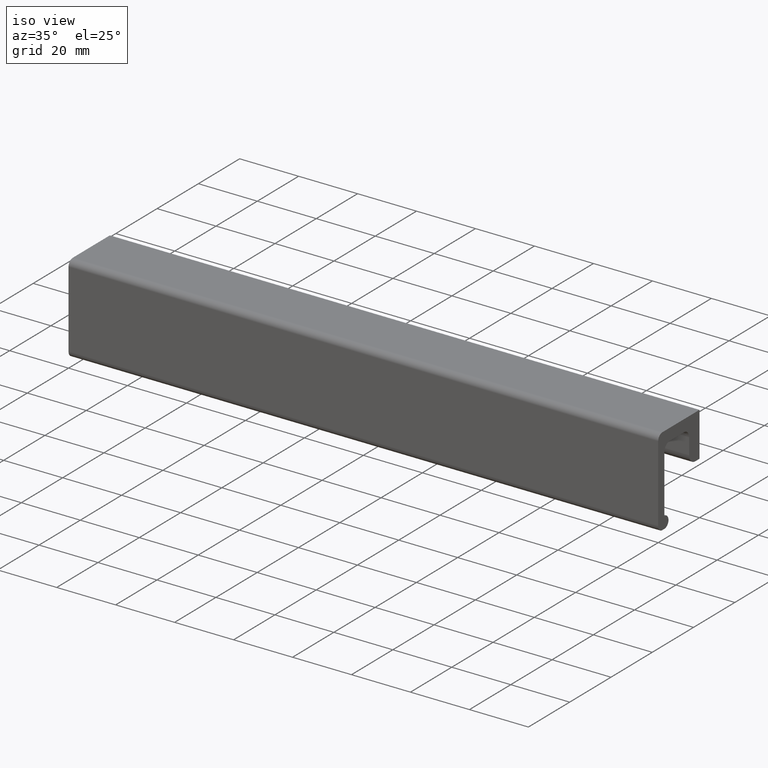
[diagram: clean part render]
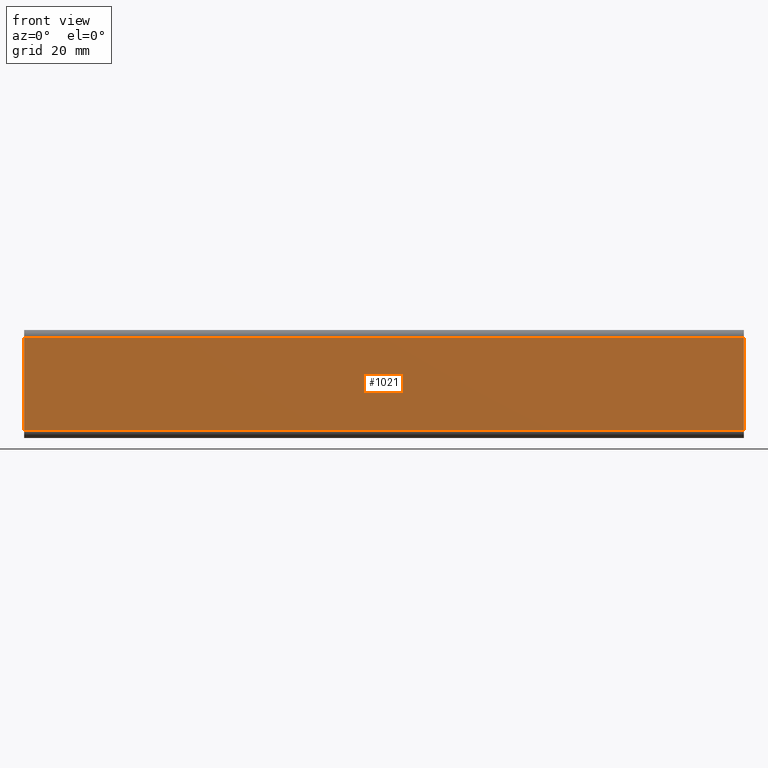
[diagram: tour spotlight — one face highlighted and labeled with its STEP entity id]
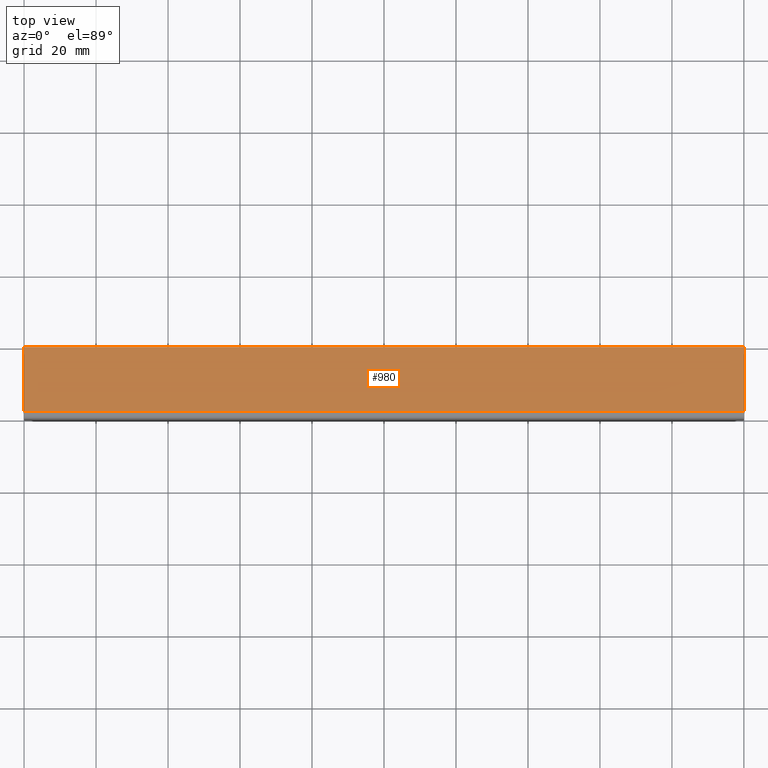
[diagram: tour spotlight — one face highlighted and labeled with its STEP entity id]
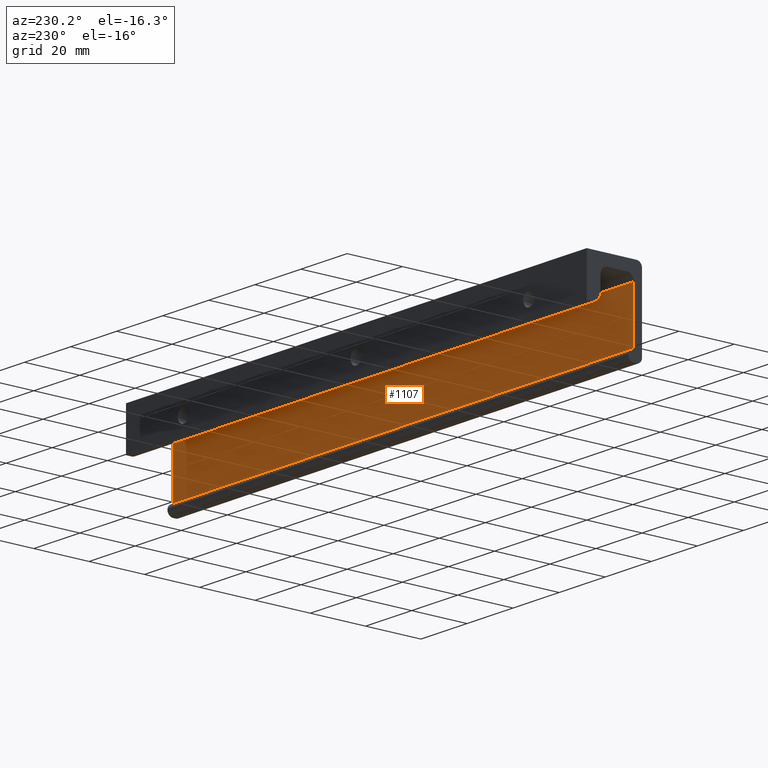
[diagram: tour spotlight — one face highlighted and labeled with its STEP entity id]
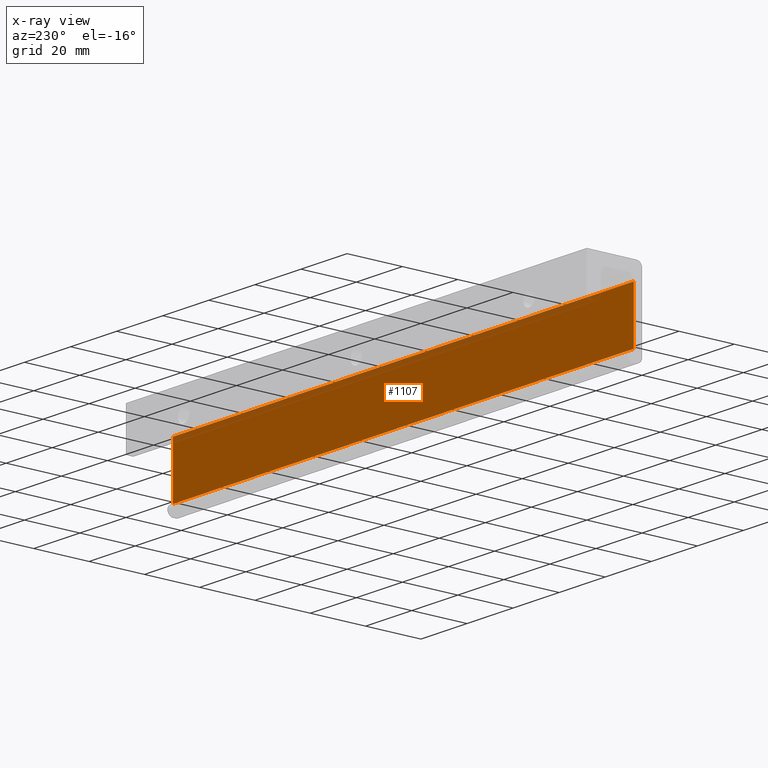
[diagram: x-ray of the same camera — body ghosted, this tour face saturated]
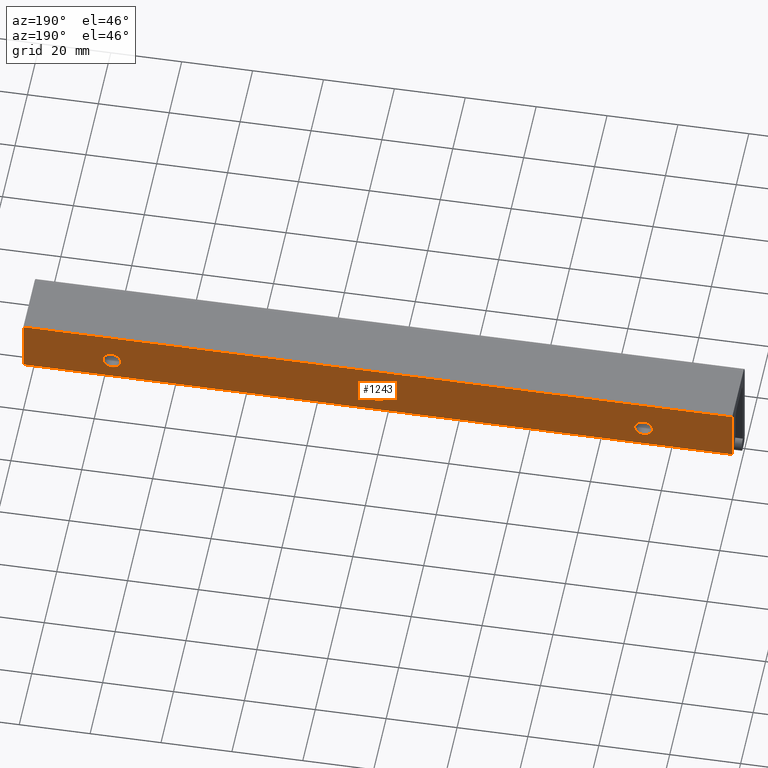
[diagram: tour spotlight — one face highlighted and labeled with its STEP entity id]
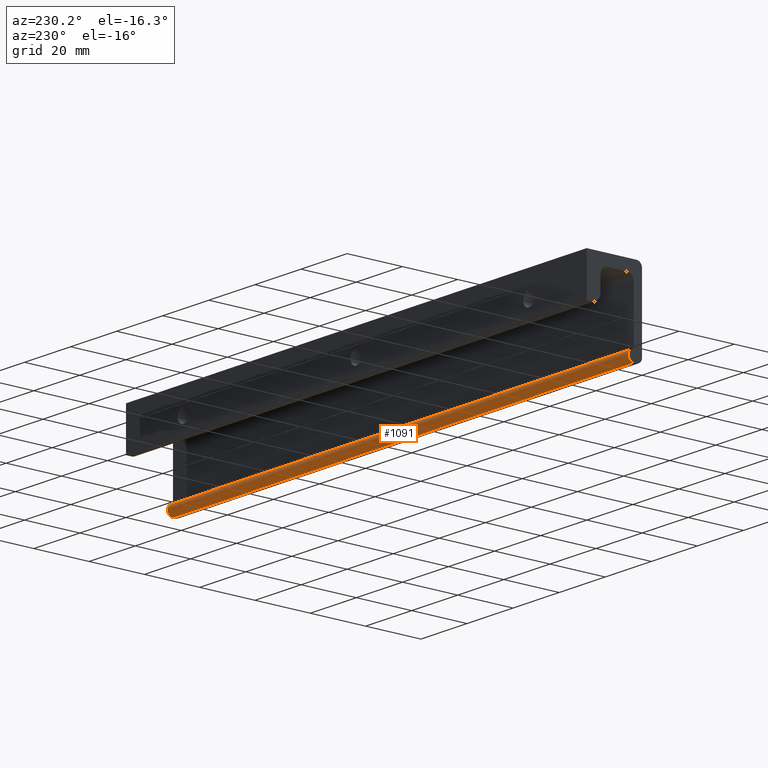
[diagram: tour spotlight — one face highlighted and labeled with its STEP entity id]
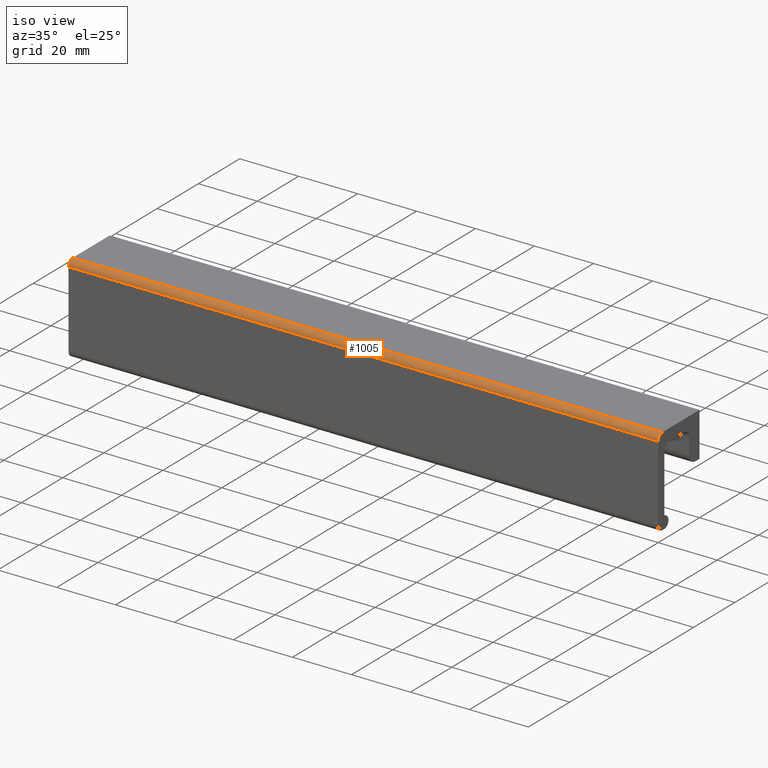
[diagram: tour spotlight — one face highlighted and labeled with its STEP entity id]
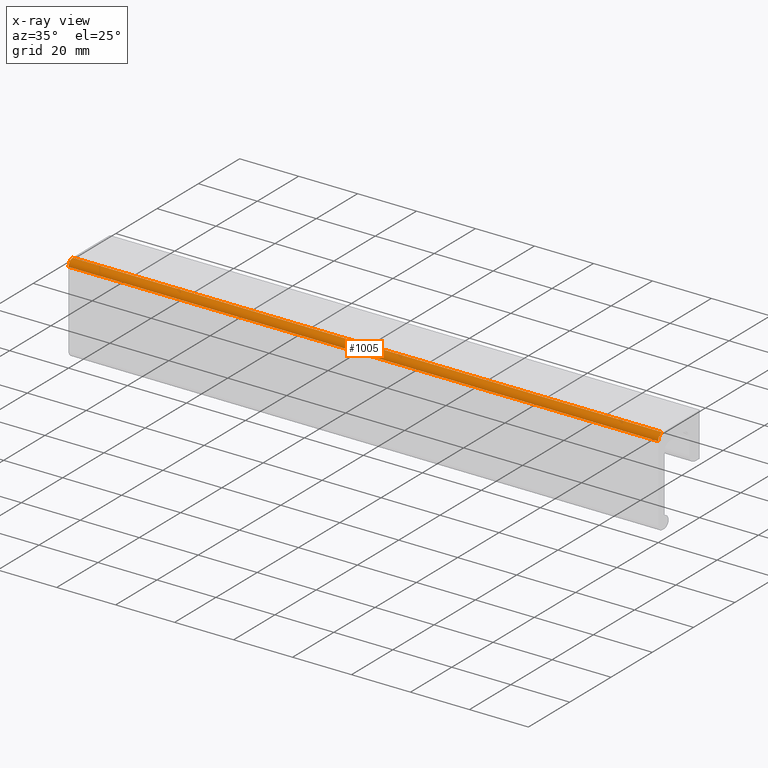
[diagram: x-ray of the same camera — body ghosted, this tour face saturated]
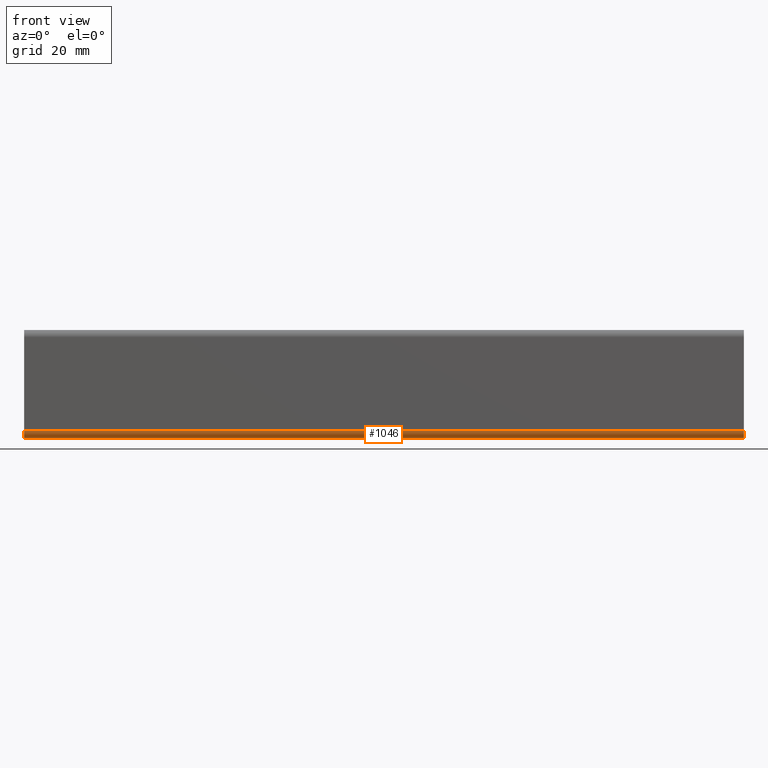
[diagram: tour spotlight — one face highlighted and labeled with its STEP entity id]
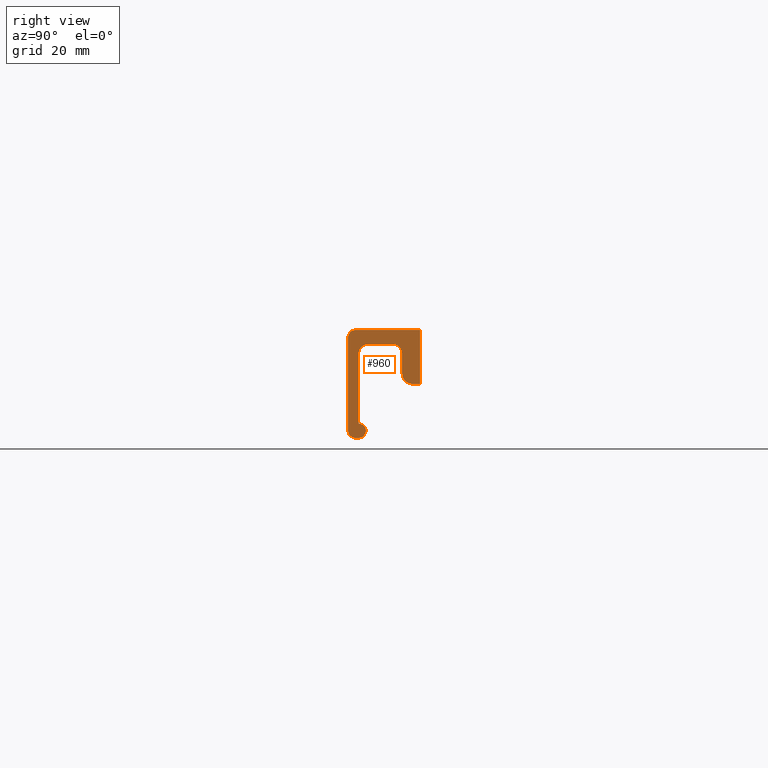
[diagram: tour spotlight — one face highlighted and labeled with its STEP entity id]
A machine part: a face-by-face anatomy tour. The part has 22 B-rep faces; the first image is the clean iso view, then the 8 largest visible faces are spotlighted one at a time (largest first), each with its STEP entity span.

Face 1 — front view, entity #1021. In plain terms, the highlighted face is a freeform B-spline surface patch.
Definition (entity closure, byte-faithful):
#768=CARTESIAN_POINT('',(0.0,-20.0,-28.0));
#769=VERTEX_POINT('',#768);
#783=CARTESIAN_POINT('',(0.0,-20.0,-2.0));
#784=VERTEX_POINT('',#783);
#785=CARTESIAN_POINT('',(0.0,-20.0,-28.0));
#786=CARTESIAN_POINT('',(0.0,-20.0,-2.0));
#787=QUASI_UNIFORM_CURVE('',1,(#785,#786),.UNSPECIFIED.,.F.,.U.);
#788=EDGE_CURVE('',#769,#784,#787,.T.);
#834=CARTESIAN_POINT('',(200.0,-20.0,-2.0));
#835=VERTEX_POINT('',#834);
#849=CARTESIAN_POINT('',(200.0,-20.0,-28.0));
#850=VERTEX_POINT('',#849);
#851=CARTESIAN_POINT('',(200.0,-20.0,-28.0));
#852=CARTESIAN_POINT('',(200.0,-20.0,-2.0));
#853=QUASI_UNIFORM_CURVE('',1,(#851,#852),.UNSPECIFIED.,.F.,.U.);
#854=EDGE_CURVE('',#850,#835,#853,.T.);
#996=CARTESIAN_POINT('',(200.0,-20.0,-2.0));
#997=CARTESIAN_POINT('',(0.0,-20.0,-2.0));
#998=QUASI_UNIFORM_CURVE('',1,(#996,#997),.UNSPECIFIED.,.F.,.U.);
#999=EDGE_CURVE('',#835,#784,#998,.T.);
#1006=CARTESIAN_POINT('',(-9.989999612361194,-20.0,-0.701300050393045));
#1007=CARTESIAN_POINT('',(-9.989999612361194,-20.0,-29.298700646981299));
#1008=CARTESIAN_POINT('',(209.990004976779200,-20.0,-0.701300050393045));
#1009=CARTESIAN_POINT('',(209.990004976779200,-20.0,-29.298700646981299));
#1010=B_SPLINE_SURFACE_WITH_KNOTS('',1,1,((#1006,#1008),(#1007,#1009)),.UNSPECIFIED.,.F.,.F.,.U.,(2,2),(2,2),(0.0,28.597400596588258),(0.0,219.980004589140410),.UNSPECIFIED.);
#1011=ORIENTED_EDGE('',*,*,#788,.F.);
#1012=CARTESIAN_POINT('',(200.0,-20.0,-28.0));
#1013=CARTESIAN_POINT('',(0.0,-20.0,-28.0));
#1014=QUASI_UNIFORM_CURVE('',1,(#1012,#1013),.UNSPECIFIED.,.F.,.U.);
#1015=EDGE_CURVE('',#850,#769,#1014,.T.);
#1016=ORIENTED_EDGE('',*,*,#1015,.F.);
#1017=ORIENTED_EDGE('',*,*,#854,.T.);
#1018=ORIENTED_EDGE('',*,*,#999,.T.);
#1019=EDGE_LOOP('',(#1011,#1016,#1017,#1018));
#1020=FACE_OUTER_BOUND('',#1019,.T.);
#1021=ADVANCED_FACE('',(#1020),#1010,.T.);

Face 2 — top view, entity #980. In plain terms, the highlighted face is a freeform B-spline surface patch.
Definition (entity closure, byte-faithful):
#670=CARTESIAN_POINT('',(0.0,0.0,0.0));
#671=VERTEX_POINT('',#670);
#790=CARTESIAN_POINT('',(0.0,-18.0,2.220446E-016));
#791=VERTEX_POINT('',#790);
#805=CARTESIAN_POINT('',(0.0,-18.0,2.220446E-016));
#806=CARTESIAN_POINT('',(0.0,0.0,0.0));
#807=QUASI_UNIFORM_CURVE('',1,(#805,#806),.UNSPECIFIED.,.F.,.U.);
#808=EDGE_CURVE('',#791,#671,#807,.T.);
#818=CARTESIAN_POINT('',(200.0,0.0,0.0));
#819=VERTEX_POINT('',#818);
#827=CARTESIAN_POINT('',(200.0,-18.0,2.220446E-016));
#828=VERTEX_POINT('',#827);
#829=CARTESIAN_POINT('',(200.0,-18.0,2.220446E-016));
#830=CARTESIAN_POINT('',(200.0,0.0,0.0));
#831=QUASI_UNIFORM_CURVE('',1,(#829,#830),.UNSPECIFIED.,.F.,.U.);
#832=EDGE_CURVE('',#828,#819,#831,.T.);
#961=CARTESIAN_POINT('',(-9.989999612361194,-18.899099965112509,0.0));
#962=CARTESIAN_POINT('',(209.990004976779200,-18.899099965112509,0.0));
#963=CARTESIAN_POINT('',(-9.989999612361194,0.899100447910129,0.0));
#964=CARTESIAN_POINT('',(209.990004976779200,0.899100447910129,0.0));
#965=B_SPLINE_SURFACE_WITH_KNOTS('',1,1,((#961,#963),(#962,#964)),.UNSPECIFIED.,.F.,.F.,.U.,(2,2),(2,2),(0.0,219.980004589140410),(0.0,19.798200413022631),.UNSPECIFIED.);
#966=ORIENTED_EDGE('',*,*,#808,.F.);
#967=CARTESIAN_POINT('',(200.0,-18.0,2.220446E-016));
#968=CARTESIAN_POINT('',(0.0,-18.0,2.220446E-016));
#969=QUASI_UNIFORM_CURVE('',1,(#967,#968),.UNSPECIFIED.,.F.,.U.);
#970=EDGE_CURVE('',#828,#791,#969,.T.);
#971=ORIENTED_EDGE('',*,*,#970,.F.);
#972=ORIENTED_EDGE('',*,*,#832,.T.);
#973=CARTESIAN_POINT('',(200.0,0.0,0.0));
#974=CARTESIAN_POINT('',(0.0,0.0,0.0));
#975=QUASI_UNIFORM_CURVE('',1,(#973,#974),.UNSPECIFIED.,.F.,.U.);
#976=EDGE_CURVE('',#819,#671,#975,.T.);
#977=ORIENTED_EDGE('',*,*,#976,.T.);
#978=EDGE_LOOP('',(#966,#971,#972,#977));
#979=FACE_OUTER_BOUND('',#978,.T.);
#980=ADVANCED_FACE('',(#979),#965,.T.);

Face 3 — auxiliary view, entity #1107. An x-ray twin of the same camera follows (body ghosted, this face saturated) — the face is partly hidden behind the body. In plain terms, the highlighted face is a freeform B-spline surface patch.
Definition (entity closure, byte-faithful):
#722=CARTESIAN_POINT('',(0.0,-17.0,-6.500000000000000));
#723=VERTEX_POINT('',#722);
#737=CARTESIAN_POINT('',(0.0,-17.000000000000249,-26.0));
#738=VERTEX_POINT('',#737);
#739=CARTESIAN_POINT('',(0.0,-17.0,-6.500000000000000));
#740=CARTESIAN_POINT('',(0.0,-17.000000000000249,-26.0));
#741=QUASI_UNIFORM_CURVE('',1,(#739,#740),.UNSPECIFIED.,.F.,.U.);
#742=EDGE_CURVE('',#723,#738,#741,.T.);
#878=CARTESIAN_POINT('',(200.0,-17.000000000000249,-26.0));
#879=VERTEX_POINT('',#878);
#895=CARTESIAN_POINT('',(200.0,-17.0,-6.500000000000000));
#896=VERTEX_POINT('',#895);
#897=CARTESIAN_POINT('',(200.0,-17.0,-6.500000000000000));
#898=CARTESIAN_POINT('',(200.0,-17.000000000000249,-26.0));
#899=QUASI_UNIFORM_CURVE('',1,(#897,#898),.UNSPECIFIED.,.F.,.U.);
#900=EDGE_CURVE('',#896,#879,#899,.T.);
#1082=CARTESIAN_POINT('',(200.0,-17.000000000000249,-26.0));
#1083=CARTESIAN_POINT('',(0.0,-17.000000000000249,-26.0));
#1084=QUASI_UNIFORM_CURVE('',1,(#1082,#1083),.UNSPECIFIED.,.F.,.U.);
#1085=EDGE_CURVE('',#879,#738,#1084,.T.);
#1092=CARTESIAN_POINT('',(-9.989999612361194,-17.000000000000249,-26.974024962205220));
#1093=CARTESIAN_POINT('',(-9.989999612361194,-17.000000000000249,-5.525974514764027));
#1094=CARTESIAN_POINT('',(209.990004976779200,-17.000000000000249,-26.974024962205220));
#1095=CARTESIAN_POINT('',(209.990004976779200,-17.000000000000249,-5.525974514764027));
#1096=B_SPLINE_SURFACE_WITH_KNOTS('',1,1,((#1092,#1094),(#1093,#1095)),.UNSPECIFIED.,.F.,.F.,.U.,(2,2),(2,2),(0.0,21.448050447441190),(0.0,219.980004589140410),.UNSPECIFIED.);
#1097=ORIENTED_EDGE('',*,*,#742,.F.);
#1098=CARTESIAN_POINT('',(200.0,-17.0,-6.500000000000000));
#1099=CARTESIAN_POINT('',(0.0,-17.0,-6.500000000000000));
#1100=QUASI_UNIFORM_CURVE('',1,(#1098,#1099),.UNSPECIFIED.,.F.,.U.);
#1101=EDGE_CURVE('',#896,#723,#1100,.T.);
#1102=ORIENTED_EDGE('',*,*,#1101,.F.);
#1103=ORIENTED_EDGE('',*,*,#900,.T.);
#1104=ORIENTED_EDGE('',*,*,#1085,.T.);
#1105=EDGE_LOOP('',(#1097,#1102,#1103,#1104));
#1106=FACE_OUTER_BOUND('',#1105,.T.);
#1107=ADVANCED_FACE('',(#1106),#1096,.T.);

Face 4 — auxiliary view, entity #1243. In plain terms, the highlighted face is a freeform B-spline surface patch.
Definition (entity closure, byte-faithful):
#79=CARTESIAN_POINT('',(177.480665534347110,5.801229E-017,-9.310320006932358));
#80=VERTEX_POINT('',#79);
#86=CARTESIAN_POINT('',(175.0,0.0,-11.500000000000000));
#87=VERTEX_POINT('',#86);
#88=CARTESIAN_POINT('',(175.0,0.0,-11.500000000000000));
#89=CARTESIAN_POINT('',(177.206746497268740,0.0,-11.500000000000000));
#90=CARTESIAN_POINT('',(177.480665534347140,5.801229E-017,-9.310320006932358));
#98=(BOUNDED_CURVE()B_SPLINE_CURVE(2,(#88,#89,#90),.UNSPECIFIED.,.F.,.U.)B_SPLINE_CURVE_WITH_KNOTS((3,3),(0.500000000000000,0.728526070793695),.UNSPECIFIED.)CURVE()GEOMETRIC_REPRESENTATION_ITEM()RATIONAL_B_SPLINE_CURVE((1.0,0.732265054169775,0.954005429817503))REPRESENTATION_ITEM(''));
#99=EDGE_CURVE('',#87,#80,#98,.T.);
#101=CARTESIAN_POINT('',(172.500095192353200,8.326673E-017,-8.978183659695775));
#102=VERTEX_POINT('',#101);
#103=CARTESIAN_POINT('',(172.500095192353230,8.326673E-017,-8.978183659695775));
#104=CARTESIAN_POINT('',(172.500000000000060,0.0,-8.989091621389868));
#105=CARTESIAN_POINT('',(172.500000000000000,0.0,-9.0));
#106=CARTESIAN_POINT('',(172.500000000000060,0.0,-11.500000000000000));
#107=CARTESIAN_POINT('',(175.0,0.0,-11.500000000000000));
#115=(BOUNDED_CURVE()B_SPLINE_CURVE(2,(#103,#104,#105,#106,#107),.UNSPECIFIED.,.F.,.U.)B_SPLINE_CURVE_WITH_KNOTS((3,2,3),(0.248460105445419,0.250000000000000,0.500000000000000),.UNSPECIFIED.)CURVE()GEOMETRIC_REPRESENTATION_ITEM()RATIONAL_B_SPLINE_CURVE((0.996414027592205,0.998195901309102,1.0,0.707106781186548,1.0))REPRESENTATION_ITEM(''));
#116=EDGE_CURVE('',#102,#87,#115,.T.);
#196=CARTESIAN_POINT('',(175.0,0.0,-6.499999999999999));
#197=VERTEX_POINT('',#196);
#198=CARTESIAN_POINT('',(175.0,0.0,-6.499999999999999));
#199=CARTESIAN_POINT('',(172.521721976602270,0.0,-6.499999999999998));
#200=CARTESIAN_POINT('',(172.500095192353230,8.326673E-017,-8.978183659695775));
#208=(BOUNDED_CURVE()B_SPLINE_CURVE(2,(#198,#199,#200),.UNSPECIFIED.,.F.,.U.)B_SPLINE_CURVE_WITH_KNOTS((3,3),(0.0,0.248460105445419),.UNSPECIFIED.)CURVE()GEOMETRIC_REPRESENTATION_ITEM()RATIONAL_B_SPLINE_CURVE((1.0,0.708910879877445,0.996414027592205))REPRESENTATION_ITEM(''));
#209=EDGE_CURVE('',#197,#102,#208,.T.);
#211=CARTESIAN_POINT('',(177.480665534347110,5.801229E-017,-9.310320006932358));
#212=CARTESIAN_POINT('',(177.499999999999970,0.0,-9.155762320586804));
#213=CARTESIAN_POINT('',(177.500000000000000,0.0,-9.0));
#214=CARTESIAN_POINT('',(177.500000000000030,0.0,-6.499999999999999));
#215=CARTESIAN_POINT('',(175.0,0.0,-6.499999999999999));
#223=(BOUNDED_CURVE()B_SPLINE_CURVE(2,(#211,#212,#213,#214,#215),.UNSPECIFIED.,.F.,.U.)B_SPLINE_CURVE_WITH_KNOTS((3,2,3),(0.728526070793695,0.750000000000000,1.0),.UNSPECIFIED.)CURVE()GEOMETRIC_REPRESENTATION_ITEM()RATIONAL_B_SPLINE_CURVE((0.954005429817503,0.974841727016773,1.0,0.707106781186548,1.0))REPRESENTATION_ITEM(''));
#224=EDGE_CURVE('',#80,#197,#223,.T.);
#265=CARTESIAN_POINT('',(102.480665534347100,5.801229E-017,-9.310320006932358));
#266=VERTEX_POINT('',#265);
#272=CARTESIAN_POINT('',(100.0,0.0,-11.500000000000000));
#273=VERTEX_POINT('',#272);
#274=CARTESIAN_POINT('',(100.0,0.0,-11.500000000000000));
#275=CARTESIAN_POINT('',(102.206746497268670,0.0,-11.500000000000000));
#276=CARTESIAN_POINT('',(102.480665534347080,5.801229E-017,-9.310320006932358));
#284=(BOUNDED_CURVE()B_SPLINE_CURVE(2,(#274,#275,#276),.UNSPECIFIED.,.F.,.U.)B_SPLINE_CURVE_WITH_KNOTS((3,3),(0.500000000000000,0.728526070793695),.UNSPECIFIED.)CURVE()GEOMETRIC_REPRESENTATION_ITEM()RATIONAL_B_SPLINE_CURVE((1.0,0.732265054169775,0.954005429817503))REPRESENTATION_ITEM(''));
#285=EDGE_CURVE('',#273,#266,#284,.T.);
#287=CARTESIAN_POINT('',(97.500095192353172,8.326673E-017,-8.978183659695777));
#288=VERTEX_POINT('',#287);
#289=CARTESIAN_POINT('',(97.500095192353172,8.326673E-017,-8.978183659695777));
#290=CARTESIAN_POINT('',(97.500000000000000,0.0,-8.989091621389868));
#291=CARTESIAN_POINT('',(97.500000000000000,0.0,-9.0));
#292=CARTESIAN_POINT('',(97.500000000000000,0.0,-11.500000000000000));
#293=CARTESIAN_POINT('',(100.0,0.0,-11.500000000000000));
#301=(BOUNDED_CURVE()B_SPLINE_CURVE(2,(#289,#290,#291,#292,#293),.UNSPECIFIED.,.F.,.U.)B_SPLINE_CURVE_WITH_KNOTS((3,2,3),(0.248460105445419,0.250000000000000,0.500000000000000),.UNSPECIFIED.)CURVE()GEOMETRIC_REPRESENTATION_ITEM()RATIONAL_B_SPLINE_CURVE((0.996414027592205,0.998195901309102,1.0,0.707106781186548,1.0))REPRESENTATION_ITEM(''));
#302=EDGE_CURVE('',#288,#273,#301,.T.);
#382=CARTESIAN_POINT('',(100.0,0.0,-6.499999999999999));
#383=VERTEX_POINT('',#382);
#384=CARTESIAN_POINT('',(100.0,0.0,-6.499999999999999));
#385=CARTESIAN_POINT('',(97.521721976602279,0.0,-6.500000000000000));
#386=CARTESIAN_POINT('',(97.500095192353172,8.326673E-017,-8.978183659695777));
#394=(BOUNDED_CURVE()B_SPLINE_CURVE(2,(#384,#385,#386),.UNSPECIFIED.,.F.,.U.)B_SPLINE_CURVE_WITH_KNOTS((3,3),(0.0,0.248460105445419),.UNSPECIFIED.)CURVE()GEOMETRIC_REPRESENTATION_ITEM()RATIONAL_B_SPLINE_CURVE((1.0,0.708910879877445,0.996414027592205))REPRESENTATION_ITEM(''));
#395=EDGE_CURVE('',#383,#288,#394,.T.);
#397=CARTESIAN_POINT('',(102.480665534347080,5.801229E-017,-9.310320006932358));
#398=CARTESIAN_POINT('',(102.500000000000010,0.0,-9.155762320586804));
#399=CARTESIAN_POINT('',(102.500000000000000,0.0,-9.0));
#400=CARTESIAN_POINT('',(102.500000000000010,0.0,-6.499999999999999));
#401=CARTESIAN_POINT('',(100.0,0.0,-6.499999999999999));
#409=(BOUNDED_CURVE()B_SPLINE_CURVE(2,(#397,#398,#399,#400,#401),.UNSPECIFIED.,.F.,.U.)B_SPLINE_CURVE_WITH_KNOTS((3,2,3),(0.728526070793695,0.750000000000000,1.0),.UNSPECIFIED.)CURVE()GEOMETRIC_REPRESENTATION_ITEM()RATIONAL_B_SPLINE_CURVE((0.954005429817503,0.974841727016773,1.0,0.707106781186548,1.0))REPRESENTATION_ITEM(''));
#410=EDGE_CURVE('',#266,#383,#409,.T.);
#451=CARTESIAN_POINT('',(27.480665534347079,5.801229E-017,-9.310320006932356));
#452=VERTEX_POINT('',#451);
#458=CARTESIAN_POINT('',(25.0,0.0,-11.500000000000000));
#459=VERTEX_POINT('',#458);
#460=CARTESIAN_POINT('',(25.0,0.0,-11.500000000000000));
#461=CARTESIAN_POINT('',(27.206746497268643,0.0,-11.500000000000000));
#462=CARTESIAN_POINT('',(27.480665534347086,5.801229E-017,-9.310320006932356));
#470=(BOUNDED_CURVE()B_SPLINE_CURVE(2,(#460,#461,#462),.UNSPECIFIED.,.F.,.U.)B_SPLINE_CURVE_WITH_KNOTS((3,3),(0.500000000000000,0.728526070793695),.UNSPECIFIED.)CURVE()GEOMETRIC_REPRESENTATION_ITEM()RATIONAL_B_SPLINE_CURVE((1.0,0.732265054169775,0.954005429817503))REPRESENTATION_ITEM(''));
#471=EDGE_CURVE('',#459,#452,#470,.T.);
#473=CARTESIAN_POINT('',(22.500095192353172,8.326673E-017,-8.978183659695775));
#474=VERTEX_POINT('',#473);
#475=CARTESIAN_POINT('',(22.500095192353168,8.326673E-017,-8.978183659695775));
#476=CARTESIAN_POINT('',(22.500000000000000,0.0,-8.989091621389868));
#477=CARTESIAN_POINT('',(22.500000000000000,0.0,-9.0));
#478=CARTESIAN_POINT('',(22.500000000000000,0.0,-11.500000000000000));
#479=CARTESIAN_POINT('',(25.0,0.0,-11.500000000000000));
#487=(BOUNDED_CURVE()B_SPLINE_CURVE(2,(#475,#476,#477,#478,#479),.UNSPECIFIED.,.F.,.U.)B_SPLINE_CURVE_WITH_KNOTS((3,2,3),(0.248460105445419,0.250000000000000,0.500000000000000),.UNSPECIFIED.)CURVE()GEOMETRIC_REPRESENTATION_ITEM()RATIONAL_B_SPLINE_CURVE((0.996414027592205,0.998195901309102,1.0,0.707106781186548,1.0))REPRESENTATION_ITEM(''));
#488=EDGE_CURVE('',#474,#459,#487,.T.);
#568=CARTESIAN_POINT('',(25.0,0.0,-6.499999999999999));
#569=VERTEX_POINT('',#568);
#570=CARTESIAN_POINT('',(25.0,0.0,-6.499999999999999));
#571=CARTESIAN_POINT('',(22.521721976602297,0.0,-6.499999999999999));
#572=CARTESIAN_POINT('',(22.500095192353172,8.326673E-017,-8.978183659695775));
#580=(BOUNDED_CURVE()B_SPLINE_CURVE(2,(#570,#571,#572),.UNSPECIFIED.,.F.,.U.)B_SPLINE_CURVE_WITH_KNOTS((3,3),(0.0,0.248460105445419),.UNSPECIFIED.)CURVE()GEOMETRIC_REPRESENTATION_ITEM()RATIONAL_B_SPLINE_CURVE((1.0,0.708910879877445,0.996414027592205))REPRESENTATION_ITEM(''));
#581=EDGE_CURVE('',#569,#474,#580,.T.);
#583=CARTESIAN_POINT('',(27.480665534347086,5.801229E-017,-9.310320006932356));
#584=CARTESIAN_POINT('',(27.499999999999996,0.0,-9.155762320586804));
#585=CARTESIAN_POINT('',(27.500000000000000,0.0,-9.0));
#586=CARTESIAN_POINT('',(27.500000000000004,0.0,-6.499999999999999));
#587=CARTESIAN_POINT('',(25.0,0.0,-6.499999999999999));
#595=(BOUNDED_CURVE()B_SPLINE_CURVE(2,(#583,#584,#585,#586,#587),.UNSPECIFIED.,.F.,.U.)B_SPLINE_CURVE_WITH_KNOTS((3,2,3),(0.728526070793695,0.750000000000000,1.0),.UNSPECIFIED.)CURVE()GEOMETRIC_REPRESENTATION_ITEM()RATIONAL_B_SPLINE_CURVE((0.954005429817503,0.974841727016773,1.0,0.707106781186548,1.0))REPRESENTATION_ITEM(''));
#596=EDGE_CURVE('',#452,#569,#595,.T.);
#670=CARTESIAN_POINT('',(0.0,0.0,0.0));
#671=VERTEX_POINT('',#670);
#672=CARTESIAN_POINT('',(0.0,0.0,-15.0));
#673=VERTEX_POINT('',#672);
#674=CARTESIAN_POINT('',(0.0,0.0,0.0));
#675=CARTESIAN_POINT('',(0.0,0.0,-15.0));
#676=QUASI_UNIFORM_CURVE('',1,(#674,#675),.UNSPECIFIED.,.F.,.U.);
#677=EDGE_CURVE('',#671,#673,#676,.T.);
#818=CARTESIAN_POINT('',(200.0,0.0,0.0));
#819=VERTEX_POINT('',#818);
#820=CARTESIAN_POINT('',(200.0,0.0,-15.0));
#821=VERTEX_POINT('',#820);
#822=CARTESIAN_POINT('',(200.0,0.0,0.0));
#823=CARTESIAN_POINT('',(200.0,0.0,-15.0));
#824=QUASI_UNIFORM_CURVE('',1,(#822,#823),.UNSPECIFIED.,.F.,.U.);
#825=EDGE_CURVE('',#819,#821,#824,.T.);
#973=CARTESIAN_POINT('',(200.0,0.0,0.0));
#974=CARTESIAN_POINT('',(0.0,0.0,0.0));
#975=QUASI_UNIFORM_CURVE('',1,(#973,#974),.UNSPECIFIED.,.F.,.U.);
#976=EDGE_CURVE('',#819,#671,#975,.T.);
#1204=CARTESIAN_POINT('',(200.0,0.0,-15.0));
#1205=CARTESIAN_POINT('',(0.0,0.0,-15.0));
#1206=QUASI_UNIFORM_CURVE('',1,(#1204,#1205),.UNSPECIFIED.,.F.,.U.);
#1207=EDGE_CURVE('',#821,#673,#1206,.T.);
#1214=CARTESIAN_POINT('',(-9.989999612361194,0.0,-15.749249970927091));
#1215=CARTESIAN_POINT('',(-9.989999612361194,0.0,0.749250373258442));
#1216=CARTESIAN_POINT('',(209.990004976779200,0.0,-15.749249970927091));
#1217=CARTESIAN_POINT('',(209.990004976779200,0.0,0.749250373258442));
#1218=B_SPLINE_SURFACE_WITH_KNOTS('',1,1,((#1214,#1216),(#1215,#1217)),.UNSPECIFIED.,.F.,.F.,.U.,(2,2),(2,2),(0.0,16.498500344185530),(0.0,219.980004589140410),.UNSPECIFIED.);
#1219=ORIENTED_EDGE('',*,*,#677,.F.);
#1220=ORIENTED_EDGE('',*,*,#976,.F.);
#1221=ORIENTED_EDGE('',*,*,#825,.T.);
#1222=ORIENTED_EDGE('',*,*,#1207,.T.);
#1223=EDGE_LOOP('',(#1219,#1220,#1221,#1222));
#1224=FACE_OUTER_BOUND('',#1223,.T.);
#1225=ORIENTED_EDGE('',*,*,#581,.T.);
#1226=ORIENTED_EDGE('',*,*,#488,.T.);
#1227=ORIENTED_EDGE('',*,*,#471,.T.);
#1228=ORIENTED_EDGE('',*,*,#596,.T.);
#1229=EDGE_LOOP('',(#1225,#1226,#1227,#1228));
#1230=FACE_BOUND('',#1229,.T.);
#1231=ORIENTED_EDGE('',*,*,#395,.T.);
#1232=ORIENTED_EDGE('',*,*,#302,.T.);
#1233=ORIENTED_EDGE('',*,*,#285,.T.);
#1234=ORIENTED_EDGE('',*,*,#410,.T.);
#1235=EDGE_LOOP('',(#1231,#1232,#1233,#1234));
#1236=FACE_BOUND('',#1235,.T.);
#1237=ORIENTED_EDGE('',*,*,#209,.T.);
#1238=ORIENTED_EDGE('',*,*,#116,.T.);
#1239=ORIENTED_EDGE('',*,*,#99,.T.);
#1240=ORIENTED_EDGE('',*,*,#224,.T.);
#1241=EDGE_LOOP('',(#1237,#1238,#1239,#1240));
#1242=FACE_BOUND('',#1241,.T.);
#1243=ADVANCED_FACE('',(#1224,#1230,#1236,#1242),#1218,.T.);

Face 5 — auxiliary view, entity #1091. In plain terms, the highlighted face is a freeform B-spline surface patch.
Definition (entity closure, byte-faithful):
#737=CARTESIAN_POINT('',(0.0,-17.000000000000249,-26.0));
#738=VERTEX_POINT('',#737);
#744=CARTESIAN_POINT('',(0.0,-17.000000000000249,-30.0));
#745=VERTEX_POINT('',#744);
#746=CARTESIAN_POINT('',(0.0,-17.000000000000249,-30.0));
#747=CARTESIAN_POINT('',(0.0,-15.000000000000249,-30.000000000000004));
#748=CARTESIAN_POINT('',(0.0,-15.000000000000250,-28.0));
#749=CARTESIAN_POINT('',(0.0,-15.000000000000249,-26.000000000000004));
#750=CARTESIAN_POINT('',(0.0,-17.000000000000249,-26.0));
#758=(BOUNDED_CURVE()B_SPLINE_CURVE(2,(#746,#747,#748,#749,#750),.UNSPECIFIED.,.F.,.U.)B_SPLINE_CURVE_WITH_KNOTS((3,2,3),(0.0,0.500000000000000,1.0),.UNSPECIFIED.)CURVE()GEOMETRIC_REPRESENTATION_ITEM()RATIONAL_B_SPLINE_CURVE((1.0,0.707106781186548,1.0,0.707106781186548,1.0))REPRESENTATION_ITEM(''));
#759=EDGE_CURVE('',#745,#738,#758,.T.);
#871=CARTESIAN_POINT('',(200.0,-17.000000000000249,-30.0));
#872=VERTEX_POINT('',#871);
#878=CARTESIAN_POINT('',(200.0,-17.000000000000249,-26.0));
#879=VERTEX_POINT('',#878);
#880=CARTESIAN_POINT('',(200.0,-17.000000000000249,-30.0));
#881=CARTESIAN_POINT('',(200.0,-15.000000000000249,-30.000000000000004));
#882=CARTESIAN_POINT('',(200.0,-15.000000000000250,-28.0));
#883=CARTESIAN_POINT('',(200.0,-15.000000000000249,-26.000000000000004));
#884=CARTESIAN_POINT('',(200.0,-17.000000000000249,-26.0));
#892=(BOUNDED_CURVE()B_SPLINE_CURVE(2,(#880,#881,#882,#883,#884),.UNSPECIFIED.,.F.,.U.)B_SPLINE_CURVE_WITH_KNOTS((3,2,3),(0.0,0.500000000000000,1.0),.UNSPECIFIED.)CURVE()GEOMETRIC_REPRESENTATION_ITEM()RATIONAL_B_SPLINE_CURVE((1.0,0.707106781186548,1.0,0.707106781186548,1.0))REPRESENTATION_ITEM(''));
#893=EDGE_CURVE('',#872,#879,#892,.T.);
#1053=CARTESIAN_POINT('',(200.0,-17.000000000000249,-30.0));
#1054=CARTESIAN_POINT('',(0.0,-17.000000000000249,-30.0));
#1055=QUASI_UNIFORM_CURVE('',1,(#1053,#1054),.UNSPECIFIED.,.F.,.U.);
#1056=EDGE_CURVE('',#872,#745,#1055,.T.);
#1063=CARTESIAN_POINT('',(205.0,-17.052353896616001,-29.999314649951110));
#1064=CARTESIAN_POINT('',(-5.125000000000000,-17.052353896616001,-29.999314649951110));
#1065=CARTESIAN_POINT('',(205.000000000000030,-14.945515854314456,-30.054484145685791));
#1066=CARTESIAN_POINT('',(-5.124999999999999,-14.945515854314456,-30.054484145685791));
#1067=CARTESIAN_POINT('',(205.0,-15.000685350049141,-27.947646103384251));
#1068=CARTESIAN_POINT('',(-5.125000000000000,-15.000685350049141,-27.947646103384251));
#1069=CARTESIAN_POINT('',(205.000000000000030,-15.055854845783832,-25.840808061082697));
#1070=CARTESIAN_POINT('',(-5.124999999999999,-15.055854845783832,-25.840808061082697));
#1071=CARTESIAN_POINT('',(205.0,-17.156918191455940,-26.006165332533751));
#1072=CARTESIAN_POINT('',(-5.125000000000000,-17.156918191455940,-26.006165332533751));
#1080=(BOUNDED_SURFACE()B_SPLINE_SURFACE(1,2,((#1063,#1065,#1067,#1069,#1071),(#1064,#1066,#1068,#1070,#1072)),.UNSPECIFIED.,.F.,.F.,.U.)B_SPLINE_SURFACE_WITH_KNOTS((2,2),(3,2,3),(0.0,210.125000000000110),(0.0,3.437071247734684,6.874142495469369),.UNSPECIFIED.)GEOMETRIC_REPRESENTATION_ITEM()RATIONAL_B_SPLINE_SURFACE(((1.0,0.688354575693754,1.0,0.688354575693754,1.0),(1.0,0.688354575693754,1.0,0.688354575693754,1.0)))REPRESENTATION_ITEM('')SURFACE());
#1081=ORIENTED_EDGE('',*,*,#759,.T.);
#1082=CARTESIAN_POINT('',(200.0,-17.000000000000249,-26.0));
#1083=CARTESIAN_POINT('',(0.0,-17.000000000000249,-26.0));
#1084=QUASI_UNIFORM_CURVE('',1,(#1082,#1083),.UNSPECIFIED.,.F.,.U.);
#1085=EDGE_CURVE('',#879,#738,#1084,.T.);
#1086=ORIENTED_EDGE('',*,*,#1085,.F.);
#1087=ORIENTED_EDGE('',*,*,#893,.F.);
#1088=ORIENTED_EDGE('',*,*,#1056,.T.);
#1089=EDGE_LOOP('',(#1081,#1086,#1087,#1088));
#1090=FACE_OUTER_BOUND('',#1089,.T.);
#1091=ADVANCED_FACE('',(#1090),#1080,.T.);

Face 6 — iso view, entity #1005. An x-ray twin of the same camera follows (body ghosted, this face saturated) — the face is partly hidden behind the body. In plain terms, the highlighted face is a freeform B-spline surface patch.
Definition (entity closure, byte-faithful):
#783=CARTESIAN_POINT('',(0.0,-20.0,-2.0));
#784=VERTEX_POINT('',#783);
#790=CARTESIAN_POINT('',(0.0,-18.0,2.220446E-016));
#791=VERTEX_POINT('',#790);
#792=CARTESIAN_POINT('',(0.0,-18.0,0.0));
#793=CARTESIAN_POINT('',(0.0,-19.999999999999996,0.0));
#794=CARTESIAN_POINT('',(0.0,-20.0,-2.0));
#802=(BOUNDED_CURVE()B_SPLINE_CURVE(2,(#792,#793,#794),.UNSPECIFIED.,.F.,.U.)CURVE()GEOMETRIC_REPRESENTATION_ITEM()QUASI_UNIFORM_CURVE()RATIONAL_B_SPLINE_CURVE((1.0,0.707106781186548,1.0))REPRESENTATION_ITEM(''));
#803=EDGE_CURVE('',#791,#784,#802,.T.);
#827=CARTESIAN_POINT('',(200.0,-18.0,2.220446E-016));
#828=VERTEX_POINT('',#827);
#834=CARTESIAN_POINT('',(200.0,-20.0,-2.0));
#835=VERTEX_POINT('',#834);
#836=CARTESIAN_POINT('',(200.0,-18.0,0.0));
#837=CARTESIAN_POINT('',(200.0,-19.999999999999996,0.0));
#838=CARTESIAN_POINT('',(200.0,-20.0,-2.0));
#846=(BOUNDED_CURVE()B_SPLINE_CURVE(2,(#836,#837,#838),.UNSPECIFIED.,.F.,.U.)CURVE()GEOMETRIC_REPRESENTATION_ITEM()QUASI_UNIFORM_CURVE()RATIONAL_B_SPLINE_CURVE((1.0,0.707106781186548,1.0))REPRESENTATION_ITEM(''));
#847=EDGE_CURVE('',#828,#835,#846,.T.);
#967=CARTESIAN_POINT('',(200.0,-18.0,2.220446E-016));
#968=CARTESIAN_POINT('',(0.0,-18.0,2.220446E-016));
#969=QUASI_UNIFORM_CURVE('',1,(#967,#968),.UNSPECIFIED.,.F.,.U.);
#970=EDGE_CURVE('',#828,#791,#969,.T.);
#981=CARTESIAN_POINT('',(205.0,-17.912761225269328,-0.001903556836285));
#982=CARTESIAN_POINT('',(-5.125000000000000,-17.912761225269328,-0.001903556836285));
#983=CARTESIAN_POINT('',(205.000000000000030,-20.152120528918076,0.095868981871968));
#984=CARTESIAN_POINT('',(-5.125000000000000,-20.152120528918076,0.095868981871968));
#985=CARTESIAN_POINT('',(205.000000000000060,-19.995085826463828,-2.140116184087046));
#986=CARTESIAN_POINT('',(-5.124999999999999,-19.995085826463828,-2.140116184087046));
#994=(BOUNDED_SURFACE()B_SPLINE_SURFACE(1,2,((#981,#983,#985),(#982,#984,#986)),.UNSPECIFIED.,.F.,.F.,.U.)B_SPLINE_SURFACE_WITH_KNOTS((2,2),(3,3),(0.0,210.125000000000000),(0.0,3.583485079683966),.UNSPECIFIED.)GEOMETRIC_REPRESENTATION_ITEM()RATIONAL_B_SPLINE_SURFACE(((1.0,0.664513898535122,0.996233561259061),(1.0,0.664513898535122,0.996233561259061)))REPRESENTATION_ITEM('')SURFACE());
#995=ORIENTED_EDGE('',*,*,#803,.T.);
#996=CARTESIAN_POINT('',(200.0,-20.0,-2.0));
#997=CARTESIAN_POINT('',(0.0,-20.0,-2.0));
#998=QUASI_UNIFORM_CURVE('',1,(#996,#997),.UNSPECIFIED.,.F.,.U.);
#999=EDGE_CURVE('',#835,#784,#998,.T.);
#1000=ORIENTED_EDGE('',*,*,#999,.F.);
#1001=ORIENTED_EDGE('',*,*,#847,.F.);
#1002=ORIENTED_EDGE('',*,*,#970,.T.);
#1003=EDGE_LOOP('',(#995,#1000,#1001,#1002));
#1004=FACE_OUTER_BOUND('',#1003,.T.);
#1005=ADVANCED_FACE('',(#1004),#994,.T.);

Face 7 — front view, entity #1046. In plain terms, the highlighted face is a freeform B-spline surface patch.
Definition (entity closure, byte-faithful):
#761=CARTESIAN_POINT('',(0.0,-18.0,-30.0));
#762=VERTEX_POINT('',#761);
#768=CARTESIAN_POINT('',(0.0,-20.0,-28.0));
#769=VERTEX_POINT('',#768);
#770=CARTESIAN_POINT('',(0.0,-20.0,-28.0));
#771=CARTESIAN_POINT('',(0.0,-19.999999999999996,-30.000000000000004));
#772=CARTESIAN_POINT('',(0.0,-18.0,-30.0));
#780=(BOUNDED_CURVE()B_SPLINE_CURVE(2,(#770,#771,#772),.UNSPECIFIED.,.F.,.U.)CURVE()GEOMETRIC_REPRESENTATION_ITEM()QUASI_UNIFORM_CURVE()RATIONAL_B_SPLINE_CURVE((1.0,0.707106781186548,1.0))REPRESENTATION_ITEM(''));
#781=EDGE_CURVE('',#769,#762,#780,.T.);
#849=CARTESIAN_POINT('',(200.0,-20.0,-28.0));
#850=VERTEX_POINT('',#849);
#856=CARTESIAN_POINT('',(200.0,-18.0,-30.0));
#857=VERTEX_POINT('',#856);
#858=CARTESIAN_POINT('',(200.0,-20.0,-28.0));
#859=CARTESIAN_POINT('',(200.0,-19.999999999999996,-30.000000000000004));
#860=CARTESIAN_POINT('',(200.0,-18.0,-30.0));
#868=(BOUNDED_CURVE()B_SPLINE_CURVE(2,(#858,#859,#860),.UNSPECIFIED.,.F.,.U.)CURVE()GEOMETRIC_REPRESENTATION_ITEM()QUASI_UNIFORM_CURVE()RATIONAL_B_SPLINE_CURVE((1.0,0.707106781186548,1.0))REPRESENTATION_ITEM(''));
#869=EDGE_CURVE('',#850,#857,#868,.T.);
#1012=CARTESIAN_POINT('',(200.0,-20.0,-28.0));
#1013=CARTESIAN_POINT('',(0.0,-20.0,-28.0));
#1014=QUASI_UNIFORM_CURVE('',1,(#1012,#1013),.UNSPECIFIED.,.F.,.U.);
#1015=EDGE_CURVE('',#850,#769,#1014,.T.);
#1022=CARTESIAN_POINT('',(205.0,-19.998096443163710,-27.912761225269328));
#1023=CARTESIAN_POINT('',(-5.125000000000000,-19.998096443163710,-27.912761225269328));
#1024=CARTESIAN_POINT('',(205.000000000000030,-20.095868981871966,-30.152120528918065));
#1025=CARTESIAN_POINT('',(-5.125000000000000,-20.095868981871966,-30.152120528918065));
#1026=CARTESIAN_POINT('',(205.000000000000060,-17.859883815912951,-29.995085826463828));
#1027=CARTESIAN_POINT('',(-5.124999999999999,-17.859883815912951,-29.995085826463828));
#1035=(BOUNDED_SURFACE()B_SPLINE_SURFACE(1,2,((#1022,#1024,#1026),(#1023,#1025,#1027)),.UNSPECIFIED.,.F.,.F.,.U.)B_SPLINE_SURFACE_WITH_KNOTS((2,2),(3,3),(0.0,210.125000000000000),(0.0,3.583485079683956),.UNSPECIFIED.)GEOMETRIC_REPRESENTATION_ITEM()RATIONAL_B_SPLINE_SURFACE(((1.0,0.664513898535122,0.996233561259061),(1.0,0.664513898535122,0.996233561259061)))REPRESENTATION_ITEM('')SURFACE());
#1036=ORIENTED_EDGE('',*,*,#781,.T.);
#1037=CARTESIAN_POINT('',(200.0,-18.0,-30.0));
#1038=CARTESIAN_POINT('',(0.0,-18.0,-30.0));
#1039=QUASI_UNIFORM_CURVE('',1,(#1037,#1038),.UNSPECIFIED.,.F.,.U.);
#1040=EDGE_CURVE('',#857,#762,#1039,.T.);
#1041=ORIENTED_EDGE('',*,*,#1040,.F.);
#1042=ORIENTED_EDGE('',*,*,#869,.F.);
#1043=ORIENTED_EDGE('',*,*,#1015,.T.);
#1044=EDGE_LOOP('',(#1036,#1041,#1042,#1043));
#1045=FACE_OUTER_BOUND('',#1044,.T.);
#1046=ADVANCED_FACE('',(#1045),#1035,.T.);

Face 8 — right view, entity #960. In plain terms, the highlighted face is a freeform B-spline surface patch.
Definition (entity closure, byte-faithful):
#607=CARTESIAN_POINT('',(200.0,-5.000000000000110,-6.500000000000000));
#608=VERTEX_POINT('',#607);
#650=CARTESIAN_POINT('',(200.0,-5.0,-12.0));
#651=VERTEX_POINT('',#650);
#657=CARTESIAN_POINT('',(200.0,-5.0,-12.0));
#658=CARTESIAN_POINT('',(200.0,-5.000000000000110,-6.500000000000000));
#659=QUASI_UNIFORM_CURVE('',1,(#657,#658),.UNSPECIFIED.,.F.,.U.);
#660=EDGE_CURVE('',#651,#608,#659,.T.);
#813=CARTESIAN_POINT('',(200.0,-20.998999961236120,1.498499941854179));
#814=CARTESIAN_POINT('',(200.0,0.999000497677920,1.498499941854179));
#815=CARTESIAN_POINT('',(200.0,-20.998999961236120,-31.498500746516889));
#816=CARTESIAN_POINT('',(200.0,0.999000497677920,-31.498500746516889));
#817=B_SPLINE_SURFACE_WITH_KNOTS('',1,1,((#813,#815),(#814,#816)),.UNSPECIFIED.,.F.,.F.,.U.,(2,2),(2,2),(0.0,21.998000458914039),(0.0,32.997000688371067),.UNSPECIFIED.);
#818=CARTESIAN_POINT('',(200.0,0.0,0.0));
#819=VERTEX_POINT('',#818);
#820=CARTESIAN_POINT('',(200.0,0.0,-15.0));
#821=VERTEX_POINT('',#820);
#822=CARTESIAN_POINT('',(200.0,0.0,0.0));
#823=CARTESIAN_POINT('',(200.0,0.0,-15.0));
#824=QUASI_UNIFORM_CURVE('',1,(#822,#823),.UNSPECIFIED.,.F.,.U.);
#825=EDGE_CURVE('',#819,#821,#824,.T.);
#826=ORIENTED_EDGE('',*,*,#825,.F.);
#827=CARTESIAN_POINT('',(200.0,-18.0,2.220446E-016));
#828=VERTEX_POINT('',#827);
#829=CARTESIAN_POINT('',(200.0,-18.0,2.220446E-016));
#830=CARTESIAN_POINT('',(200.0,0.0,0.0));
#831=QUASI_UNIFORM_CURVE('',1,(#829,#830),.UNSPECIFIED.,.F.,.U.);
#832=EDGE_CURVE('',#828,#819,#831,.T.);
#833=ORIENTED_EDGE('',*,*,#832,.F.);
#834=CARTESIAN_POINT('',(200.0,-20.0,-2.0));
#835=VERTEX_POINT('',#834);
#836=CARTESIAN_POINT('',(200.0,-18.0,0.0));
#837=CARTESIAN_POINT('',(200.0,-19.999999999999996,0.0));
#838=CARTESIAN_POINT('',(200.0,-20.0,-2.0));
#846=(BOUNDED_CURVE()B_SPLINE_CURVE(2,(#836,#837,#838),.UNSPECIFIED.,.F.,.U.)CURVE()GEOMETRIC_REPRESENTATION_ITEM()QUASI_UNIFORM_CURVE()RATIONAL_B_SPLINE_CURVE((1.0,0.707106781186548,1.0))REPRESENTATION_ITEM(''));
#847=EDGE_CURVE('',#828,#835,#846,.T.);
#848=ORIENTED_EDGE('',*,*,#847,.T.);
#849=CARTESIAN_POINT('',(200.0,-20.0,-28.0));
#850=VERTEX_POINT('',#849);
#851=CARTESIAN_POINT('',(200.0,-20.0,-28.0));
#852=CARTESIAN_POINT('',(200.0,-20.0,-2.0));
#853=QUASI_UNIFORM_CURVE('',1,(#851,#852),.UNSPECIFIED.,.F.,.U.);
#854=EDGE_CURVE('',#850,#835,#853,.T.);
#855=ORIENTED_EDGE('',*,*,#854,.F.);
#856=CARTESIAN_POINT('',(200.0,-18.0,-30.0));
#857=VERTEX_POINT('',#856);
#858=CARTESIAN_POINT('',(200.0,-20.0,-28.0));
#859=CARTESIAN_POINT('',(200.0,-19.999999999999996,-30.000000000000004));
#860=CARTESIAN_POINT('',(200.0,-18.0,-30.0));
#868=(BOUNDED_CURVE()B_SPLINE_CURVE(2,(#858,#859,#860),.UNSPECIFIED.,.F.,.U.)CURVE()GEOMETRIC_REPRESENTATION_ITEM()QUASI_UNIFORM_CURVE()RATIONAL_B_SPLINE_CURVE((1.0,0.707106781186548,1.0))REPRESENTATION_ITEM(''));
#869=EDGE_CURVE('',#850,#857,#868,.T.);
#870=ORIENTED_EDGE('',*,*,#869,.T.);
#871=CARTESIAN_POINT('',(200.0,-17.000000000000249,-30.0));
#872=VERTEX_POINT('',#871);
#873=CARTESIAN_POINT('',(200.0,-17.000000000000249,-30.0));
#874=CARTESIAN_POINT('',(200.0,-18.0,-30.0));
#875=QUASI_UNIFORM_CURVE('',1,(#873,#874),.UNSPECIFIED.,.F.,.U.);
#876=EDGE_CURVE('',#872,#857,#875,.T.);
#877=ORIENTED_EDGE('',*,*,#876,.F.);
#878=CARTESIAN_POINT('',(200.0,-17.000000000000249,-26.0));
#879=VERTEX_POINT('',#878);
#880=CARTESIAN_POINT('',(200.0,-17.000000000000249,-30.0));
#881=CARTESIAN_POINT('',(200.0,-15.000000000000249,-30.000000000000004));
#882=CARTESIAN_POINT('',(200.0,-15.000000000000250,-28.0));
#883=CARTESIAN_POINT('',(200.0,-15.000000000000249,-26.000000000000004));
#884=CARTESIAN_POINT('',(200.0,-17.000000000000249,-26.0));
#892=(BOUNDED_CURVE()B_SPLINE_CURVE(2,(#880,#881,#882,#883,#884),.UNSPECIFIED.,.F.,.U.)B_SPLINE_CURVE_WITH_KNOTS((3,2,3),(0.0,0.500000000000000,1.0),.UNSPECIFIED.)CURVE()GEOMETRIC_REPRESENTATION_ITEM()RATIONAL_B_SPLINE_CURVE((1.0,0.707106781186548,1.0,0.707106781186548,1.0))REPRESENTATION_ITEM(''));
#893=EDGE_CURVE('',#872,#879,#892,.T.);
#894=ORIENTED_EDGE('',*,*,#893,.T.);
#895=CARTESIAN_POINT('',(200.0,-17.0,-6.500000000000000));
#896=VERTEX_POINT('',#895);
#897=CARTESIAN_POINT('',(200.0,-17.0,-6.500000000000000));
#898=CARTESIAN_POINT('',(200.0,-17.000000000000249,-26.0));
#899=QUASI_UNIFORM_CURVE('',1,(#897,#898),.UNSPECIFIED.,.F.,.U.);
#900=EDGE_CURVE('',#896,#879,#899,.T.);
#901=ORIENTED_EDGE('',*,*,#900,.F.);
#902=CARTESIAN_POINT('',(200.0,-14.500000000000000,-4.000000000000085));
#903=VERTEX_POINT('',#902);
#904=CARTESIAN_POINT('',(200.0,-14.500000000000000,-4.0));
#905=CARTESIAN_POINT('',(200.0,-17.000000000000004,-4.000000000000000));
#906=CARTESIAN_POINT('',(200.0,-17.0,-6.500000000000000));
#914=(BOUNDED_CURVE()B_SPLINE_CURVE(2,(#904,#905,#906),.UNSPECIFIED.,.F.,.U.)CURVE()GEOMETRIC_REPRESENTATION_ITEM()QUASI_UNIFORM_CURVE()RATIONAL_B_SPLINE_CURVE((1.0,0.707106781186548,1.0))REPRESENTATION_ITEM(''));
#915=EDGE_CURVE('',#903,#896,#914,.T.);
#916=ORIENTED_EDGE('',*,*,#915,.F.);
#917=CARTESIAN_POINT('',(200.0,-7.500000000000110,-4.0));
#918=VERTEX_POINT('',#917);
#919=CARTESIAN_POINT('',(200.0,-7.500000000000110,-4.0));
#920=CARTESIAN_POINT('',(200.0,-14.500000000000000,-4.000000000000085));
#921=QUASI_UNIFORM_CURVE('',1,(#919,#920),.UNSPECIFIED.,.F.,.U.);
#922=EDGE_CURVE('',#918,#903,#921,.T.);
#923=ORIENTED_EDGE('',*,*,#922,.F.);
#924=CARTESIAN_POINT('',(200.0,-5.000000000000110,-6.500000000000000));
#925=CARTESIAN_POINT('',(200.0,-5.000000000000110,-4.000000000000000));
#926=CARTESIAN_POINT('',(200.0,-7.500000000000110,-4.0));
#934=(BOUNDED_CURVE()B_SPLINE_CURVE(2,(#924,#925,#926),.UNSPECIFIED.,.F.,.U.)CURVE()GEOMETRIC_REPRESENTATION_ITEM()QUASI_UNIFORM_CURVE()RATIONAL_B_SPLINE_CURVE((1.0,0.707106781186548,1.0))REPRESENTATION_ITEM(''));
#935=EDGE_CURVE('',#608,#918,#934,.T.);
#936=ORIENTED_EDGE('',*,*,#935,.F.);
#937=ORIENTED_EDGE('',*,*,#660,.F.);
#938=CARTESIAN_POINT('',(200.0,-2.0,-15.0));
#939=VERTEX_POINT('',#938);
#940=CARTESIAN_POINT('',(200.0,-5.0,-12.0));
#941=CARTESIAN_POINT('',(200.0,-5.000000000000001,-14.999999999999995));
#942=CARTESIAN_POINT('',(200.0,-2.0,-15.0));
#950=(BOUNDED_CURVE()B_SPLINE_CURVE(2,(#940,#941,#942),.UNSPECIFIED.,.F.,.U.)CURVE()GEOMETRIC_REPRESENTATION_ITEM()QUASI_UNIFORM_CURVE()RATIONAL_B_SPLINE_CURVE((1.0,0.707106781186548,1.0))REPRESENTATION_ITEM(''));
#951=EDGE_CURVE('',#651,#939,#950,.T.);
#952=ORIENTED_EDGE('',*,*,#951,.T.);
#953=CARTESIAN_POINT('',(200.0,0.0,-15.0));
#954=CARTESIAN_POINT('',(200.0,-2.0,-15.0));
#955=QUASI_UNIFORM_CURVE('',1,(#953,#954),.UNSPECIFIED.,.F.,.U.);
#956=EDGE_CURVE('',#821,#939,#955,.T.);
#957=ORIENTED_EDGE('',*,*,#956,.F.);
#958=EDGE_LOOP('',(#826,#833,#848,#855,#870,#877,#894,#901,#916,#923,#936,#937,#952,#957));
#959=FACE_OUTER_BOUND('',#958,.T.);
#960=ADVANCED_FACE('',(#959),#817,.F.);